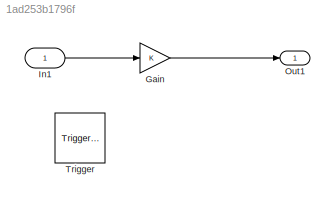
MODEL slx_1ad253b1796f
KIND model
CONFIG AbsTol = auto
CONFIG FixedStep = auto
CONFIG MaxStep = auto
CONFIG MinStep = auto
CONFIG RelTol = 1e-3
CONFIG SampleTimeConstraint = Unconstrained
CONFIG Solver = ode3
CONFIG SolverMode = Auto
CONFIG SolverName = ode3
CONFIG StartTime = 0.0
CONFIG StopTime = 10
BLOCK [Gain] Gain
  OutDataTypeStr = Inherit: Inherit via internal rule
  ParamDataTypeStr = Inherit: Inherit via internal rule
  SaturateOnIntegerOverflow = off
BLOCK [Inport] In1
  IconDisplay = Port number
  Interpolate = off
  OutDataTypeStr = double
  PortDimensions = 1
  SamplingMode = Sample based
  SignalType = real
BLOCK [Outport] Out1
  IconDisplay = Port number
  InitialOutput = 3
  OutDataTypeStr = double
  PortDimensions = 1
  SamplingMode = Sample based
  SignalType = real
BLOCK [TriggerPort] Trigger
  OutDataTypeStr = boolean
  OutputDataType = double
  PortDimensions = 1
  Ports = [0, 1]
  PropagateVarSize = Only when enabling
  SampleTime = -1
  ShowOutputPort = on
  StatesWhenEnabling = reset
  TriggerSignalSampleTime = [0.10000000000000001,0]
LINE Gain:1 -> Out1:1
LINE In1:1 -> Gain:1
